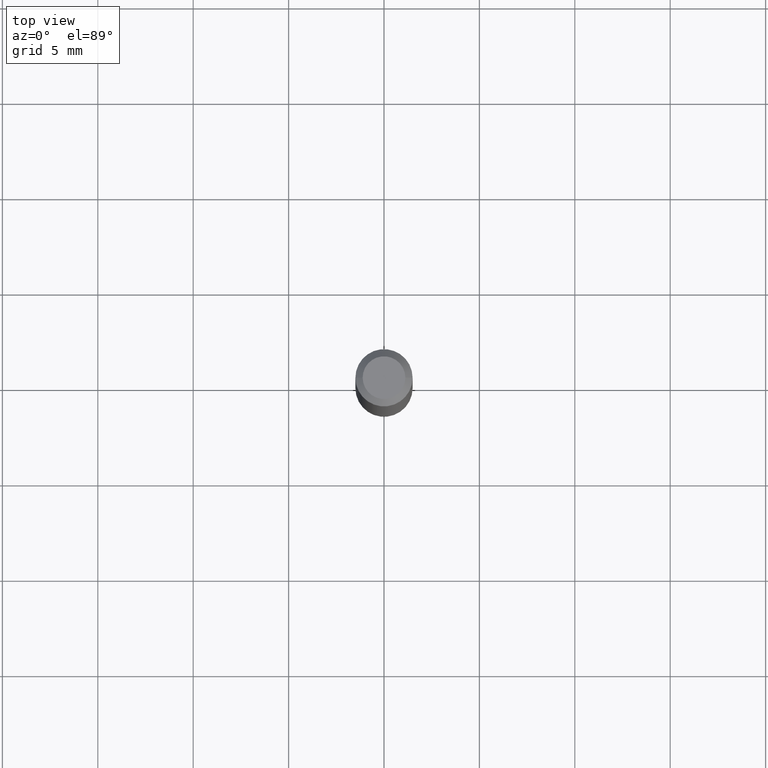
[diagram: clean part render]
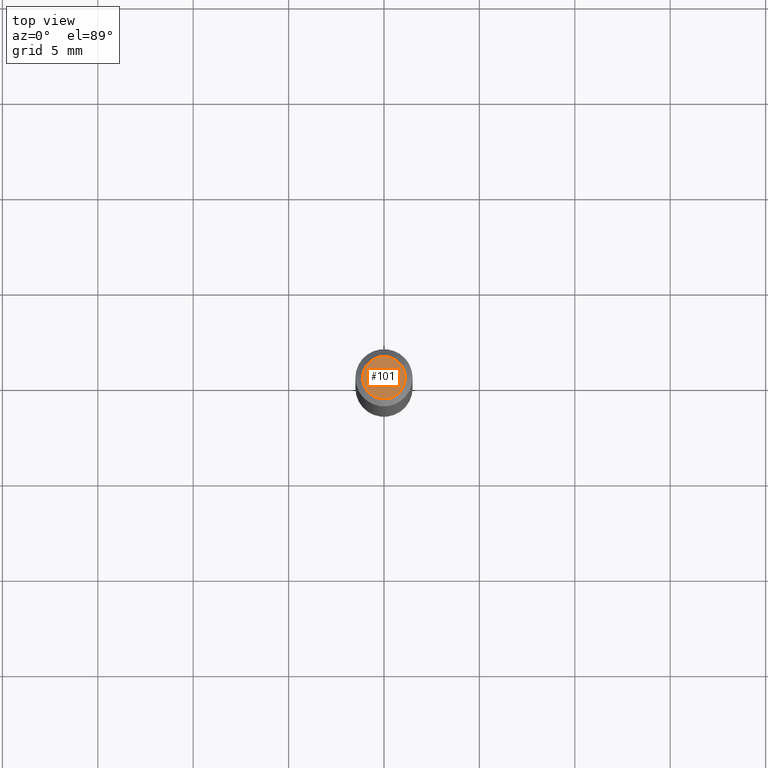
[diagram: same view with one face highlighted and labeled with its STEP entity id]
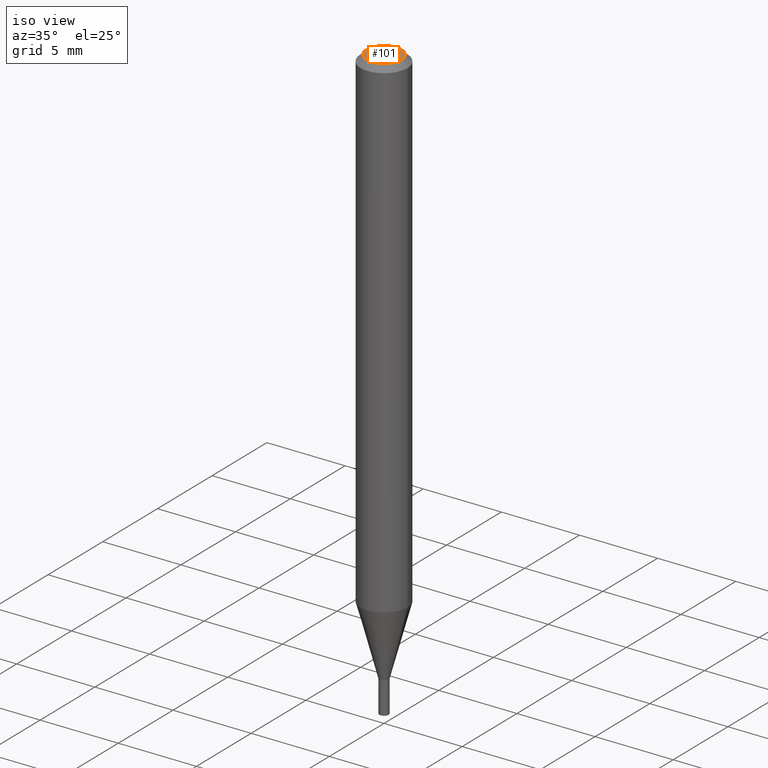
[diagram: same view with one face highlighted and labeled with its STEP entity id]
A machine part, top view. The second image highlights one B-rep face of the part: STEP entity #101.
A second angle (iso view) of the same face is appended — the face is thin or edge-on in the first view.
In plain terms, the highlighted planar face has unit normal (0, -0, -1).
Its self-contained STEP definition (entity closure, byte-faithful):
#58 = DIRECTION ( 'NONE',  ( -2.445468806185136597E-29, 3.491481338843145583E-15, 1.000000000000000000 ) ) ;
#65 = VERTEX_POINT ( 'NONE', #88 ) ;
#77 = CIRCLE ( 'NONE', #97, 0.04404999999999999888 ) ;
#88 = CARTESIAN_POINT ( 'NONE',  ( -0.04404999999999999888, 3.337856159934032167E-16, -1.195205392989733272E-16 ) ) ;
#97 = AXIS2_PLACEMENT_3D ( 'NONE', #194, #460, #197 ) ;
#101 = ADVANCED_FACE ( 'NONE', ( #122 ), #431, .F. ) ;
#103 = ORIENTED_EDGE ( 'NONE', *, *, #442, .T. ) ;
#122 = FACE_OUTER_BOUND ( 'NONE', #292, .T. ) ;
#194 = CARTESIAN_POINT ( 'NONE',  ( 2.922837505540584805E-45, -4.173037325708263829E-31, -1.195205392989710839E-16 ) ) ;
#197 = DIRECTION ( 'NONE',  ( 1.000000000000000000, -6.982962677686265922E-15, 4.888540261209747396E-29 ) ) ;
#203 = DIRECTION ( 'NONE',  ( -1.000000000000000000, 6.982962677686265922E-15, -4.876176775795935793E-29 ) ) ;
#244 = CARTESIAN_POINT ( 'NONE',  ( 3.075995059520799729E-16, 0.04404999999999999888, -2.135600226255260954E-16 ) ) ;
#253 = CARTESIAN_POINT ( 'NONE',  ( 2.922837505540584805E-45, -4.173037325708263829E-31, -1.195205392989710839E-16 ) ) ;
#256 = CARTESIAN_POINT ( 'NONE',  ( 0.04404999999999999888, -3.798447818264462051E-16, -1.195205392989686680E-16 ) ) ;
#285 = DIRECTION ( 'NONE',  ( 2.438088387897960049E-29, -3.491481338843145188E-15, -1.000000000000000000 ) ) ;
#292 = EDGE_LOOP ( 'NONE', ( #103, #416 ) ) ;
#335 = AXIS2_PLACEMENT_3D ( 'NONE', #253, #58, #363 ) ;
#361 = VERTEX_POINT ( 'NONE', #256 ) ;
#363 = DIRECTION ( 'NONE',  ( 1.000000000000000000, -6.982962677686265922E-15, 4.888540261209747396E-29 ) ) ;
#375 = EDGE_CURVE ( 'NONE', #361, #65, #77, .T. ) ;
#416 = ORIENTED_EDGE ( 'NONE', *, *, #375, .T. ) ;
#431 = PLANE ( 'NONE',  #435 ) ;
#435 = AXIS2_PLACEMENT_3D ( 'NONE', #244, #285, #203 ) ;
#442 = EDGE_CURVE ( 'NONE', #65, #361, #444, .T. ) ;
#444 = CIRCLE ( 'NONE', #335, 0.04404999999999999888 ) ;
#460 = DIRECTION ( 'NONE',  ( -2.445468806185136597E-29, 3.491481338843145583E-15, 1.000000000000000000 ) ) ;